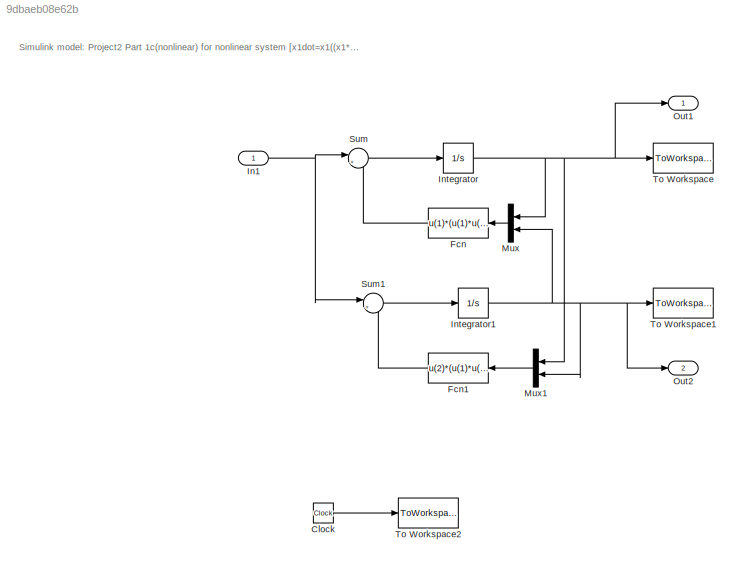
MODEL slx_9dbaeb08e62b
KIND model
BLOCK [Clock] Clock
BLOCK [Fcn] Fcn
  Expr = u(1)*(u(1)*u(1)+u(2)*u(2)-4)+u(2)
BLOCK [Fcn] Fcn1
  Expr = u(2)*(u(1)*u(1)+u(2)*u(2) -4)-u(1)
BLOCK [Inport] In1
  IconDisplay = Port number
BLOCK [Integrator] Integrator
  InitialCondition = x1
  Ports = [1, 1]
BLOCK [Integrator] Integrator1
  InitialCondition = x2
  Ports = [1, 1]
BLOCK [Mux] Mux
  DisplayOption = bar
  Inputs = 2
  Ports = [2, 1]
BLOCK [Mux] Mux1
  DisplayOption = bar
  Inputs = 2
  Ports = [2, 1]
BLOCK [Outport] Out1
  IconDisplay = Port number
BLOCK [Outport] Out2
  IconDisplay = Port number
  Port = 2
BLOCK [Sum] Sum
  IconShape = round
  InputSameDT = off
  Inputs = |++
  OutDataTypeStr = Inherit: Inherit via internal rule
  Ports = [2, 1]
  SaturateOnIntegerOverflow = off
BLOCK [Sum] Sum1
  IconShape = round
  InputSameDT = off
  Inputs = |++
  OutDataTypeStr = Inherit: Inherit via internal rule
  Ports = [2, 1]
  SaturateOnIntegerOverflow = off
BLOCK [ToWorkspace] To Workspace
  FixptAsFi = on
  MaxDataPoints = inf
  Ports = [1]
  SampleTime = -1
  Save2DSignal = 3-D array (concatenate along third dimension)
  VariableName = x11
BLOCK [ToWorkspace] To Workspace1
  FixptAsFi = on
  MaxDataPoints = inf
  Ports = [1]
  SampleTime = -1
  Save2DSignal = 3-D array (concatenate along third dimension)
  VariableName = x22
BLOCK [ToWorkspace] To Workspace2
  FixptAsFi = on
  MaxDataPoints = inf
  Ports = [1]
  SampleTime = -1
  Save2DSignal = 3-D array (concatenate along third dimension)
  VariableName = t
ANNOTATION (root): Simulink model: Project2 Part 1c(nonlinear) for nonlinear system [x1dot=x1((x1*x1)+(x2*x2)-4)+x2 & x2dot=x2((x1*x1)+(x2*x2)-4)-x1]
LINE Clock:1 -> To Workspace2:1
LINE Fcn1:1 -> Sum1:2
LINE Fcn:1 -> Sum:2
NET In1:1 -> Sum1:1, Sum:1
NET Integrator1:1 -> Mux1:2, Mux:2, Out2:1, To Workspace1:1
NET Integrator:1 -> Mux1:1, Mux:1, Out1:1, To Workspace:1
LINE Mux1:1 -> Fcn1:1
LINE Mux:1 -> Fcn:1
LINE Sum1:1 -> Integrator1:1
LINE Sum:1 -> Integrator:1
note: NET lines group one-source signal fan-out (src -> all destinations, sorted); 1:1 wires keep LINE
